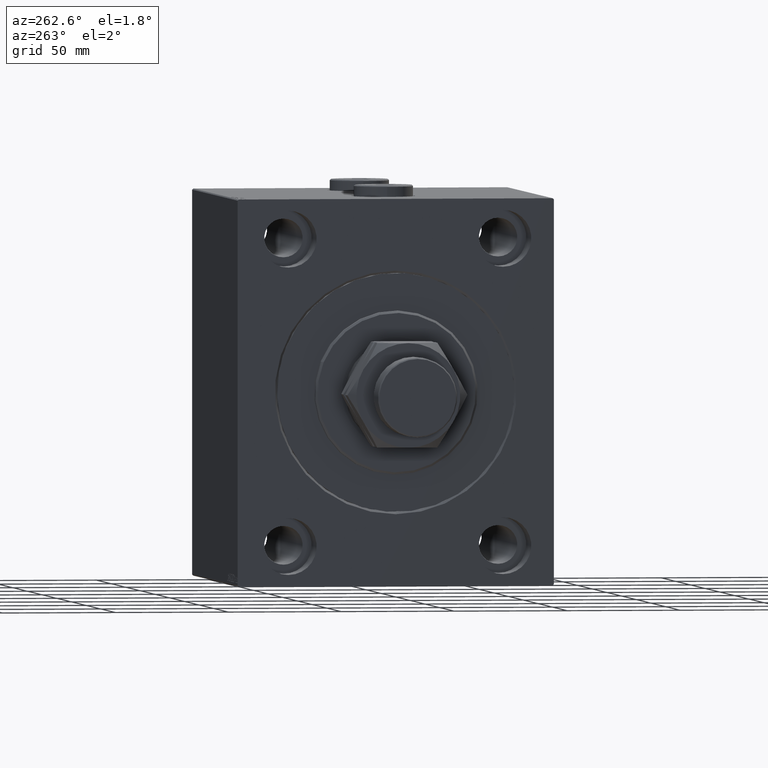
[diagram: clean part render]
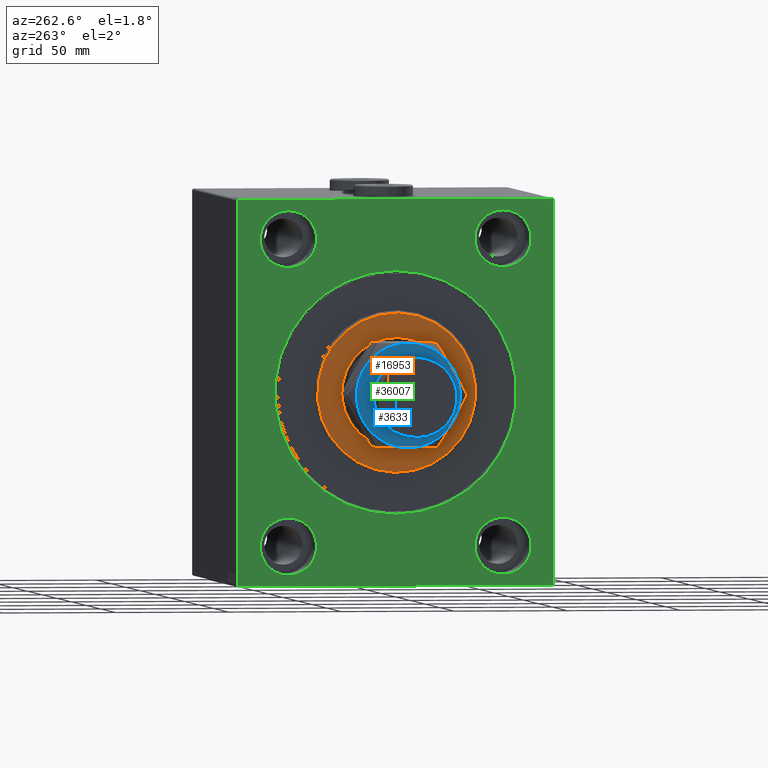
[diagram: same view with three faces highlighted in distinct colors, each labeled with its STEP entity id]
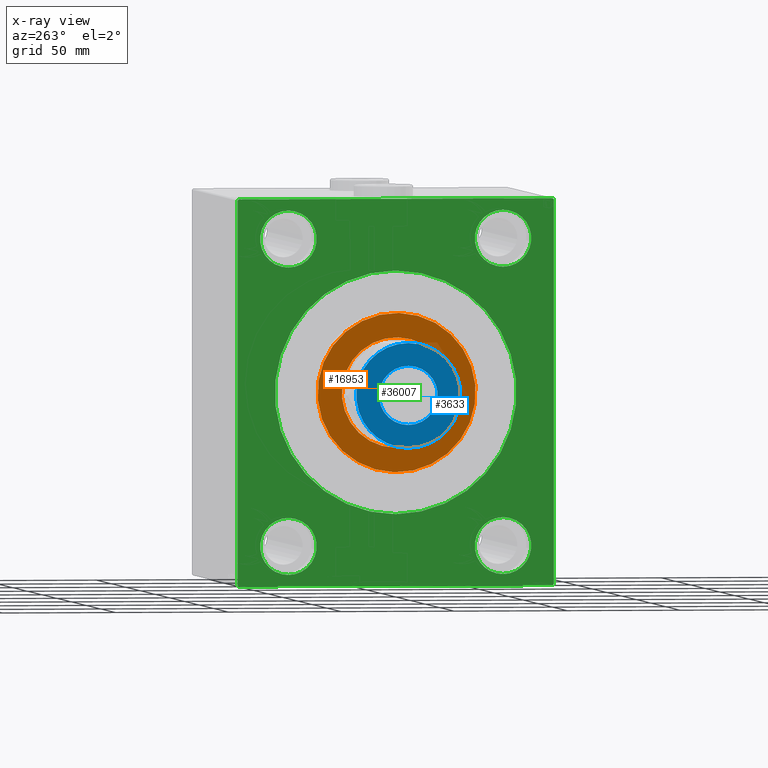
[diagram: x-ray of the same camera — body ghosted, the three highlighted faces saturated]
A machine part, auxiliary view with three faces highlighted in distinct colors.
The next image is the same camera in x-ray (body ghosted, the three faces saturated) — at least one of them is partly hidden behind the body in this view.
Their STEP definitions:

[orange] entity #16953 — the highlighted planar face has unit normal (-1, 0, 0).
#1431 = ORIENTED_EDGE ( 'NONE', *, *, #46038, .T. ) ;
#4732 = CARTESIAN_POINT ( 'NONE',  ( 3.000000000000000000, 0.000000000000000000, 24.25000000000000000 ) ) ;
#4760 = EDGE_LOOP ( 'NONE', ( #1431, #38504 ) ) ;
#6179 = DIRECTION ( 'NONE',  ( 0.000000000000000000, 0.000000000000000000, -1.000000000000000000 ) ) ;
#6636 = DIRECTION ( 'NONE',  ( 1.000000000000000000, -0.000000000000000000, 0.000000000000000000 ) ) ;
#6875 = CARTESIAN_POINT ( 'NONE',  ( 3.000000000000000000, 0.000000000000000000, 0.000000000000000000 ) ) ;
#6969 = DIRECTION ( 'NONE',  ( -1.000000000000000000, 0.000000000000000000, -0.000000000000000000 ) ) ;
#7095 = VERTEX_POINT ( 'NONE', #39741 ) ;
#7248 = CIRCLE ( 'NONE', #12568, 24.25000000000000000 ) ;
#7251 = CARTESIAN_POINT ( 'NONE',  ( 3.000000000000000000, 0.000000000000000000, 35.00000000000002842 ) ) ;
#9478 = DIRECTION ( 'NONE',  ( 1.000000000000000000, -0.000000000000000000, 0.000000000000000000 ) ) ;
#9873 = EDGE_CURVE ( 'NONE', #23143, #15786, #38648, .T. ) ;
#10547 = CARTESIAN_POINT ( 'NONE',  ( 3.000000000000000000, 0.000000000000000000, 0.000000000000000000 ) ) ;
#11006 = EDGE_LOOP ( 'NONE', ( #25014, #34041 ) ) ;
#12568 = AXIS2_PLACEMENT_3D ( 'NONE', #17240, #31300, #46278 ) ;
#15735 = PLANE ( 'NONE',  #25267 ) ;
#15786 = VERTEX_POINT ( 'NONE', #47106 ) ;
#16953 = ADVANCED_FACE ( 'NONE', ( #44784, #37416 ), #15735, .T. ) ;
#17240 = CARTESIAN_POINT ( 'NONE',  ( 3.000000000000000000, 0.000000000000000000, 0.000000000000000000 ) ) ;
#20025 = DIRECTION ( 'NONE',  ( 0.000000000000000000, 0.000000000000000000, -1.000000000000000000 ) ) ;
#21501 = DIRECTION ( 'NONE',  ( 0.000000000000000000, 0.000000000000000000, -1.000000000000000000 ) ) ;
#22651 = DIRECTION ( 'NONE',  ( 1.000000000000000000, -0.000000000000000000, 0.000000000000000000 ) ) ;
#23143 = VERTEX_POINT ( 'NONE', #4732 ) ;
#24004 = DIRECTION ( 'NONE',  ( 0.000000000000000000, 0.000000000000000000, -1.000000000000000000 ) ) ;
#24775 = EDGE_CURVE ( 'NONE', #15786, #23143, #7248, .T. ) ;
#25014 = ORIENTED_EDGE ( 'NONE', *, *, #9873, .T. ) ;
#25267 = AXIS2_PLACEMENT_3D ( 'NONE', #37653, #22651, #20025 ) ;
#30985 = AXIS2_PLACEMENT_3D ( 'NONE', #6875, #6636, #6179 ) ;
#31085 = CIRCLE ( 'NONE', #46250, 35.00000000000002842 ) ;
#31300 = DIRECTION ( 'NONE',  ( -1.000000000000000000, 0.000000000000000000, -0.000000000000000000 ) ) ;
#34041 = ORIENTED_EDGE ( 'NONE', *, *, #24775, .T. ) ;
#34887 = EDGE_CURVE ( 'NONE', #7095, #43801, #38604, .T. ) ;
#37416 = FACE_BOUND ( 'NONE', #11006, .T. ) ;
#37653 = CARTESIAN_POINT ( 'NONE',  ( 3.000000000000000000, 0.000000000000000000, 0.000000000000000000 ) ) ;
#38504 = ORIENTED_EDGE ( 'NONE', *, *, #34887, .T. ) ;
#38604 = CIRCLE ( 'NONE', #30985, 35.00000000000002842 ) ;
#38648 = CIRCLE ( 'NONE', #40951, 24.25000000000000000 ) ;
#39741 = CARTESIAN_POINT ( 'NONE',  ( 3.000000000000000000, 4.347496136973104859E-15, -35.00000000000002842 ) ) ;
#40951 = AXIS2_PLACEMENT_3D ( 'NONE', #10547, #6969, #21501 ) ;
#42092 = CARTESIAN_POINT ( 'NONE',  ( 3.000000000000000000, 0.000000000000000000, 0.000000000000000000 ) ) ;
#43801 = VERTEX_POINT ( 'NONE', #7251 ) ;
#44784 = FACE_OUTER_BOUND ( 'NONE', #4760, .T. ) ;
#46038 = EDGE_CURVE ( 'NONE', #43801, #7095, #31085, .T. ) ;
#46250 = AXIS2_PLACEMENT_3D ( 'NONE', #42092, #9478, #24004 ) ;
#46278 = DIRECTION ( 'NONE',  ( 0.000000000000000000, 0.000000000000000000, -1.000000000000000000 ) ) ;
#47106 = CARTESIAN_POINT ( 'NONE',  ( 3.000000000000000000, 2.969768487932331287E-15, -24.25000000000000000 ) ) ;

[blue] entity #3633 — the highlighted planar face has unit normal (-1, 0, 0).
#50 = DIRECTION ( 'NONE',  ( 1.000000000000000000, 0.000000000000000000, 0.000000000000000000 ) ) ;
#315 = CIRCLE ( 'NONE', #8726, 22.99999999999999645 ) ;
#460 = DIRECTION ( 'NONE',  ( 1.000000000000000000, 0.000000000000000000, 0.000000000000000000 ) ) ;
#1065 = DIRECTION ( 'NONE',  ( 0.000000000000000000, 0.000000000000000000, 1.000000000000000000 ) ) ;
#1235 = CARTESIAN_POINT ( 'NONE',  ( -13.00000000000000000, 1.592040838891559095E-15, 27.99999999999999645 ) ) ;
#1275 = FACE_OUTER_BOUND ( 'NONE', #6140, .T. ) ;
#1302 = ORIENTED_EDGE ( 'NONE', *, *, #9615, .T. ) ;
#1416 = DIRECTION ( 'NONE',  ( 1.000000000000000000, 0.000000000000000000, 0.000000000000000000 ) ) ;
#2680 = VERTEX_POINT ( 'NONE', #16825 ) ;
#3331 = DIRECTION ( 'NONE',  ( 1.000000000000000000, 0.000000000000000000, 0.000000000000000000 ) ) ;
#3435 = CARTESIAN_POINT ( 'NONE',  ( 22.99999999999999645, 0.000000000000000000, 28.00000000000000000 ) ) ;
#3633 = ADVANCED_FACE ( 'NONE', ( #44845, #1275 ), #27223, .T. ) ;
#5354 = CARTESIAN_POINT ( 'NONE',  ( 0.000000000000000000, 0.000000000000000000, 28.00000000000000000 ) ) ;
#6140 = EDGE_LOOP ( 'NONE', ( #11150, #25889, #13426, #1302, #40829, #32025 ) ) ;
#7082 = CARTESIAN_POINT ( 'NONE',  ( 0.000000000000000000, 0.000000000000000000, 28.00000000000000000 ) ) ;
#7105 = VERTEX_POINT ( 'NONE', #36885 ) ;
#7696 = VERTEX_POINT ( 'NONE', #3435 ) ;
#8726 = AXIS2_PLACEMENT_3D ( 'NONE', #12933, #11998, #26525 ) ;
#9584 = CARTESIAN_POINT ( 'NONE',  ( 0.000000000000000000, 0.000000000000000000, 28.00000000000000000 ) ) ;
#9615 = EDGE_CURVE ( 'NONE', #31732, #20103, #16626, .T. ) ;
#10328 = CIRCLE ( 'NONE', #19509, 22.99999999999999645 ) ;
#10947 = DIRECTION ( 'NONE',  ( 0.000000000000000000, 0.000000000000000000, 1.000000000000000000 ) ) ;
#11150 = ORIENTED_EDGE ( 'NONE', *, *, #22459, .T. ) ;
#11998 = DIRECTION ( 'NONE',  ( 0.000000000000000000, 0.000000000000000000, 1.000000000000000000 ) ) ;
#12933 = CARTESIAN_POINT ( 'NONE',  ( 0.000000000000000000, 0.000000000000000000, 28.00000000000000000 ) ) ;
#13426 = ORIENTED_EDGE ( 'NONE', *, *, #31495, .T. ) ;
#14108 = AXIS2_PLACEMENT_3D ( 'NONE', #7082, #39467, #31844 ) ;
#14987 = DIRECTION ( 'NONE',  ( 0.000000000000000000, 0.000000000000000000, 1.000000000000000000 ) ) ;
#15457 = CARTESIAN_POINT ( 'NONE',  ( 0.000000000000000000, 0.000000000000000000, 28.00000000000000000 ) ) ;
#16626 = CIRCLE ( 'NONE', #31070, 22.99999999999999645 ) ;
#16825 = CARTESIAN_POINT ( 'NONE',  ( 11.50000000000000533, -19.91858428704207995, 28.00000000000000000 ) ) ;
#18108 = CARTESIAN_POINT ( 'NONE',  ( 0.000000000000000000, 0.000000000000000000, 28.00000000000000000 ) ) ;
#18344 = DIRECTION ( 'NONE',  ( 1.000000000000000000, 0.000000000000000000, 0.000000000000000000 ) ) ;
#18676 = EDGE_CURVE ( 'NONE', #7696, #7105, #41252, .T. ) ;
#18680 = AXIS2_PLACEMENT_3D ( 'NONE', #35971, #43574, #18344 ) ;
#18710 = CIRCLE ( 'NONE', #38503, 22.99999999999999645 ) ;
#18726 = AXIS2_PLACEMENT_3D ( 'NONE', #9584, #42195, #34367 ) ;
#19509 = AXIS2_PLACEMENT_3D ( 'NONE', #32901, #32673, #50 ) ;
#20103 = VERTEX_POINT ( 'NONE', #41837 ) ;
#20418 = ORIENTED_EDGE ( 'NONE', *, *, #29671, .T. ) ;
#22459 = EDGE_CURVE ( 'NONE', #2680, #7696, #315, .T. ) ;
#22623 = AXIS2_PLACEMENT_3D ( 'NONE', #15457, #37137, #1416 ) ;
#23730 = CARTESIAN_POINT ( 'NONE',  ( -11.49999999999999822, 19.91858428704208706, 28.00000000000000000 ) ) ;
#25889 = ORIENTED_EDGE ( 'NONE', *, *, #18676, .T. ) ;
#26374 = EDGE_CURVE ( 'NONE', #27380, #2680, #45327, .T. ) ;
#26525 = DIRECTION ( 'NONE',  ( 1.000000000000000000, 0.000000000000000000, 0.000000000000000000 ) ) ;
#26622 = CARTESIAN_POINT ( 'NONE',  ( -11.50000000000000533, -19.91858428704208706, 28.00000000000000000 ) ) ;
#26778 = ORIENTED_EDGE ( 'NONE', *, *, #43580, .T. ) ;
#26820 = AXIS2_PLACEMENT_3D ( 'NONE', #18108, #10947, #3331 ) ;
#27223 = PLANE ( 'NONE',  #18726 ) ;
#27380 = VERTEX_POINT ( 'NONE', #26622 ) ;
#29671 = EDGE_CURVE ( 'NONE', #44139, #44742, #32351, .T. ) ;
#30742 = EDGE_LOOP ( 'NONE', ( #26778, #20418 ) ) ;
#31070 = AXIS2_PLACEMENT_3D ( 'NONE', #5354, #1065, #40826 ) ;
#31495 = EDGE_CURVE ( 'NONE', #7105, #31732, #18710, .T. ) ;
#31732 = VERTEX_POINT ( 'NONE', #23730 ) ;
#31844 = DIRECTION ( 'NONE',  ( 1.000000000000000000, 0.000000000000000000, 0.000000000000000000 ) ) ;
#31896 = EDGE_CURVE ( 'NONE', #20103, #27380, #10328, .T. ) ;
#32025 = ORIENTED_EDGE ( 'NONE', *, *, #26374, .T. ) ;
#32351 = CIRCLE ( 'NONE', #14108, 13.00000000000000000 ) ;
#32673 = DIRECTION ( 'NONE',  ( 0.000000000000000000, 0.000000000000000000, 1.000000000000000000 ) ) ;
#32901 = CARTESIAN_POINT ( 'NONE',  ( 0.000000000000000000, 0.000000000000000000, 28.00000000000000000 ) ) ;
#34367 = DIRECTION ( 'NONE',  ( 1.000000000000000000, 0.000000000000000000, -0.000000000000000000 ) ) ;
#35971 = CARTESIAN_POINT ( 'NONE',  ( 0.000000000000000000, 0.000000000000000000, 28.00000000000000000 ) ) ;
#36885 = CARTESIAN_POINT ( 'NONE',  ( 11.49999999999999822, 19.91858428704208706, 28.00000000000000000 ) ) ;
#37137 = DIRECTION ( 'NONE',  ( -0.000000000000000000, -0.000000000000000000, -1.000000000000000000 ) ) ;
#38503 = AXIS2_PLACEMENT_3D ( 'NONE', #39991, #14987, #460 ) ;
#39467 = DIRECTION ( 'NONE',  ( -0.000000000000000000, -0.000000000000000000, -1.000000000000000000 ) ) ;
#39991 = CARTESIAN_POINT ( 'NONE',  ( 0.000000000000000000, 0.000000000000000000, 28.00000000000000000 ) ) ;
#40826 = DIRECTION ( 'NONE',  ( 1.000000000000000000, 0.000000000000000000, 0.000000000000000000 ) ) ;
#40829 = ORIENTED_EDGE ( 'NONE', *, *, #31896, .T. ) ;
#41252 = CIRCLE ( 'NONE', #26820, 22.99999999999999645 ) ;
#41837 = CARTESIAN_POINT ( 'NONE',  ( -22.99999999999999645, 0.000000000000000000, 28.00000000000000000 ) ) ;
#42195 = DIRECTION ( 'NONE',  ( 0.000000000000000000, 0.000000000000000000, 1.000000000000000000 ) ) ;
#43574 = DIRECTION ( 'NONE',  ( 0.000000000000000000, 0.000000000000000000, 1.000000000000000000 ) ) ;
#43580 = EDGE_CURVE ( 'NONE', #44742, #44139, #44670, .T. ) ;
#44139 = VERTEX_POINT ( 'NONE', #1235 ) ;
#44670 = CIRCLE ( 'NONE', #22623, 13.00000000000000000 ) ;
#44742 = VERTEX_POINT ( 'NONE', #46443 ) ;
#44845 = FACE_BOUND ( 'NONE', #30742, .T. ) ;
#45327 = CIRCLE ( 'NONE', #18680, 22.99999999999999645 ) ;
#46443 = CARTESIAN_POINT ( 'NONE',  ( 13.00000000000000000, 0.000000000000000000, 27.99999999999999645 ) ) ;

[green] entity #36007 — the highlighted planar face has unit normal (1, 0, 0).
#120 = LINE ( 'NONE', #10365, #35266 ) ;
#1317 = CIRCLE ( 'NONE', #46157, 12.49999999999999645 ) ;
#1548 = ORIENTED_EDGE ( 'NONE', *, *, #6059, .F. ) ;
#1590 = VERTEX_POINT ( 'NONE', #43099 ) ;
#1637 = LINE ( 'NONE', #45200, #30239 ) ;
#2029 = VECTOR ( 'NONE', #39179, 1000.000000000000114 ) ;
#2257 = VERTEX_POINT ( 'NONE', #40954 ) ;
#2273 = CARTESIAN_POINT ( 'NONE',  ( 0.000000000000000000, 0.000000000000000000, 53.50000000000000000 ) ) ;
#2373 = DIRECTION ( 'NONE',  ( -1.000000000000000000, 0.000000000000000000, 0.000000000000000000 ) ) ;
#2482 = ORIENTED_EDGE ( 'NONE', *, *, #20294, .T. ) ;
#2761 = ORIENTED_EDGE ( 'NONE', *, *, #20841, .F. ) ;
#2840 = AXIS2_PLACEMENT_3D ( 'NONE', #14629, #21065, #24630 ) ;
#3057 = VERTEX_POINT ( 'NONE', #19896 ) ;
#3327 = VERTEX_POINT ( 'NONE', #28124 ) ;
#3566 = VERTEX_POINT ( 'NONE', #44925 ) ;
#4008 = EDGE_CURVE ( 'NONE', #3327, #4045, #33477, .T. ) ;
#4045 = VERTEX_POINT ( 'NONE', #8250 ) ;
#4530 = DIRECTION ( 'NONE',  ( 0.000000000000000000, 0.000000000000000000, -1.000000000000000000 ) ) ;
#5024 = DIRECTION ( 'NONE',  ( 0.000000000000000000, 0.000000000000000000, 1.000000000000000000 ) ) ;
#5155 = DIRECTION ( 'NONE',  ( 1.000000000000000000, 0.000000000000000000, 0.000000000000000000 ) ) ;
#5714 = DIRECTION ( 'NONE',  ( 0.000000000000000000, 0.000000000000000000, 1.000000000000000000 ) ) ;
#5944 = LINE ( 'NONE', #27839, #32848 ) ;
#6059 = EDGE_CURVE ( 'NONE', #30303, #4045, #13535, .T. ) ;
#6168 = DIRECTION ( 'NONE',  ( 0.000000000000000000, 0.000000000000000000, 1.000000000000000000 ) ) ;
#6329 = CIRCLE ( 'NONE', #32947, 12.49999999999999645 ) ;
#6804 = CARTESIAN_POINT ( 'NONE',  ( 0.000000000000000000, -47.49999999999999289, -55.00000000000000711 ) ) ;
#7636 = DIRECTION ( 'NONE',  ( 1.000000000000000000, 0.000000000000000000, 0.000000000000000000 ) ) ;
#7722 = EDGE_CURVE ( 'NONE', #11717, #45214, #28702, .T. ) ;
#8250 = CARTESIAN_POINT ( 'NONE',  ( 0.000000000000000000, 70.00000000000001421, 84.50000000000001421 ) ) ;
#8445 = ORIENTED_EDGE ( 'NONE', *, *, #19501, .F. ) ;
#8484 = FACE_BOUND ( 'NONE', #45181, .T. ) ;
#8568 = CARTESIAN_POINT ( 'NONE',  ( 0.000000000000000000, 70.00000000000002842, -84.50000000000007105 ) ) ;
#9084 = CARTESIAN_POINT ( 'NONE',  ( 0.000000000000000000, -69.49999999999997158, 84.99999999999998579 ) ) ;
#10241 = CARTESIAN_POINT ( 'NONE',  ( 0.000000000000000000, 47.50000000000000711, 55.00000000000000000 ) ) ;
#10365 = CARTESIAN_POINT ( 'NONE',  ( 0.000000000000000000, -69.99999999999998579, 84.49999999999998579 ) ) ;
#10371 = LINE ( 'NONE', #46091, #2029 ) ;
#10477 = AXIS2_PLACEMENT_3D ( 'NONE', #30631, #5155, #41814 ) ;
#10486 = DIRECTION ( 'NONE',  ( 0.000000000000000000, 0.000000000000000000, 1.000000000000000000 ) ) ;
#10685 = CARTESIAN_POINT ( 'NONE',  ( 0.000000000000000000, 70.00000000000002842, -84.50000000000007105 ) ) ;
#11155 = DIRECTION ( 'NONE',  ( 0.000000000000000000, 0.000000000000000000, 1.000000000000000000 ) ) ;
#11161 = CIRCLE ( 'NONE', #27884, 12.49999999999999645 ) ;
#11650 = ORIENTED_EDGE ( 'NONE', *, *, #4008, .T. ) ;
#11717 = VERTEX_POINT ( 'NONE', #22056 ) ;
#12213 = VERTEX_POINT ( 'NONE', #10241 ) ;
#12290 = EDGE_CURVE ( 'NONE', #45214, #11717, #27533, .T. ) ;
#12292 = ORIENTED_EDGE ( 'NONE', *, *, #27452, .F. ) ;
#12441 = EDGE_CURVE ( 'NONE', #2257, #34583, #5944, .T. ) ;
#12585 = DIRECTION ( 'NONE',  ( 0.000000000000000000, 1.000000000000000000, 9.912705577010325549E-17 ) ) ;
#12643 = CARTESIAN_POINT ( 'NONE',  ( 0.000000000000000000, 47.50000000000000711, 67.50000000000000000 ) ) ;
#12779 = ORIENTED_EDGE ( 'NONE', *, *, #32175, .F. ) ;
#13181 = AXIS2_PLACEMENT_3D ( 'NONE', #31276, #27937, #45804 ) ;
#13535 = LINE ( 'NONE', #43274, #18006 ) ;
#13720 = CARTESIAN_POINT ( 'NONE',  ( 0.000000000000000000, 70.00000000000001421, 85.00000000000000000 ) ) ;
#14166 = EDGE_CURVE ( 'NONE', #30303, #18394, #39962, .T. ) ;
#14529 = CARTESIAN_POINT ( 'NONE',  ( 0.000000000000000000, 47.50000000000000711, -67.50000000000000000 ) ) ;
#14629 = CARTESIAN_POINT ( 'NONE',  ( 0.000000000000000000, 0.000000000000000000, 0.000000000000000000 ) ) ;
#14881 = DIRECTION ( 'NONE',  ( -0.000000000000000000, 0.7071067811865672237, 0.7071067811865279218 ) ) ;
#14910 = DIRECTION ( 'NONE',  ( -0.000000000000000000, 0.7071067811865376918, -0.7071067811865573427 ) ) ;
#15002 = AXIS2_PLACEMENT_3D ( 'NONE', #12643, #27170, #5024 ) ;
#15341 = ORIENTED_EDGE ( 'NONE', *, *, #7722, .T. ) ;
#15414 = EDGE_LOOP ( 'NONE', ( #42009, #21981 ) ) ;
#15428 = CARTESIAN_POINT ( 'NONE',  ( 0.000000000000000000, 47.50000000000000711, -67.50000000000000000 ) ) ;
#16105 = FACE_BOUND ( 'NONE', #40922, .T. ) ;
#16454 = VECTOR ( 'NONE', #14910, 1000.000000000000114 ) ;
#16543 = ORIENTED_EDGE ( 'NONE', *, *, #12441, .F. ) ;
#17708 = DIRECTION ( 'NONE',  ( -1.000000000000000000, 0.000000000000000000, 0.000000000000000000 ) ) ;
#18006 = VECTOR ( 'NONE', #20683, 1000.000000000000000 ) ;
#18394 = VERTEX_POINT ( 'NONE', #22199 ) ;
#19043 = CARTESIAN_POINT ( 'NONE',  ( 0.000000000000000000, -47.49999999999997868, 55.00000000000000000 ) ) ;
#19501 = EDGE_CURVE ( 'NONE', #1590, #39011, #37527, .T. ) ;
#19649 = EDGE_LOOP ( 'NONE', ( #31401, #15341 ) ) ;
#19896 = CARTESIAN_POINT ( 'NONE',  ( 0.000000000000000000, 47.50000000000000711, -80.00000000000000000 ) ) ;
#20294 = EDGE_CURVE ( 'NONE', #2257, #23673, #120, .T. ) ;
#20683 = DIRECTION ( 'NONE',  ( 0.000000000000000000, -8.163404592832031500E-17, 1.000000000000000000 ) ) ;
#20841 = EDGE_CURVE ( 'NONE', #3057, #3566, #6329, .T. ) ;
#20862 = ORIENTED_EDGE ( 'NONE', *, *, #39391, .F. ) ;
#21065 = DIRECTION ( 'NONE',  ( 1.000000000000000000, 0.000000000000000000, 0.000000000000000000 ) ) ;
#21981 = ORIENTED_EDGE ( 'NONE', *, *, #35549, .F. ) ;
#22056 = CARTESIAN_POINT ( 'NONE',  ( 0.000000000000000000, 6.551860375438339893E-15, -53.50000000000000000 ) ) ;
#22164 = CARTESIAN_POINT ( 'NONE',  ( 0.000000000000000000, 0.000000000000000000, 0.000000000000000000 ) ) ;
#22199 = CARTESIAN_POINT ( 'NONE',  ( 0.000000000000000000, 69.50000000000007105, -85.00000000000001421 ) ) ;
#22906 = VECTOR ( 'NONE', #46629, 1000.000000000000114 ) ;
#23017 = FACE_OUTER_BOUND ( 'NONE', #46525, .T. ) ;
#23248 = FACE_BOUND ( 'NONE', #15414, .T. ) ;
#23352 = DIRECTION ( 'NONE',  ( -1.000000000000000000, 0.000000000000000000, 0.000000000000000000 ) ) ;
#23673 = VERTEX_POINT ( 'NONE', #9084 ) ;
#23779 = ORIENTED_EDGE ( 'NONE', *, *, #34380, .F. ) ;
#24357 = ORIENTED_EDGE ( 'NONE', *, *, #14166, .T. ) ;
#24630 = DIRECTION ( 'NONE',  ( 0.000000000000000000, 0.000000000000000000, -1.000000000000000000 ) ) ;
#24851 = CARTESIAN_POINT ( 'NONE',  ( 0.000000000000000000, -47.49999999999999289, -67.50000000000000000 ) ) ;
#25045 = VERTEX_POINT ( 'NONE', #46222 ) ;
#25708 = VERTEX_POINT ( 'NONE', #45665 ) ;
#26186 = ORIENTED_EDGE ( 'NONE', *, *, #27255, .F. ) ;
#27170 = DIRECTION ( 'NONE',  ( -1.000000000000000000, 0.000000000000000000, 0.000000000000000000 ) ) ;
#27247 = ORIENTED_EDGE ( 'NONE', *, *, #33374, .T. ) ;
#27255 = EDGE_CURVE ( 'NONE', #46833, #25045, #30132, .T. ) ;
#27297 = FACE_BOUND ( 'NONE', #19649, .T. ) ;
#27452 = EDGE_CURVE ( 'NONE', #3327, #23673, #41847, .T. ) ;
#27533 = CIRCLE ( 'NONE', #41970, 53.50000000000000000 ) ;
#27839 = CARTESIAN_POINT ( 'NONE',  ( 0.000000000000000000, -69.99999999999998579, 84.99999999999998579 ) ) ;
#27884 = AXIS2_PLACEMENT_3D ( 'NONE', #14529, #28817, #10486 ) ;
#27937 = DIRECTION ( 'NONE',  ( -1.000000000000000000, 0.000000000000000000, 0.000000000000000000 ) ) ;
#28124 = CARTESIAN_POINT ( 'NONE',  ( 0.000000000000000000, 69.50000000000004263, 85.00000000000000000 ) ) ;
#28702 = CIRCLE ( 'NONE', #2840, 53.50000000000000000 ) ;
#28817 = DIRECTION ( 'NONE',  ( -1.000000000000000000, 0.000000000000000000, 0.000000000000000000 ) ) ;
#28827 = CIRCLE ( 'NONE', #34931, 12.50000000000001066 ) ;
#30132 = CIRCLE ( 'NONE', #36219, 12.50000000000001066 ) ;
#30239 = VECTOR ( 'NONE', #12585, 1000.000000000000000 ) ;
#30303 = VERTEX_POINT ( 'NONE', #8568 ) ;
#30631 = CARTESIAN_POINT ( 'NONE',  ( 0.000000000000000000, 0.000000000000000000, 0.000000000000000000 ) ) ;
#30714 = DIRECTION ( 'NONE',  ( 0.000000000000000000, 0.000000000000000000, -1.000000000000000000 ) ) ;
#31276 = CARTESIAN_POINT ( 'NONE',  ( 0.000000000000000000, -47.49999999999999289, -67.50000000000000000 ) ) ;
#31401 = ORIENTED_EDGE ( 'NONE', *, *, #12290, .T. ) ;
#31574 = DIRECTION ( 'NONE',  ( 0.000000000000000000, -1.000000000000000000, -9.912705577010325549E-17 ) ) ;
#32175 = EDGE_CURVE ( 'NONE', #3566, #3057, #11161, .T. ) ;
#32213 = DIRECTION ( 'NONE',  ( 0.000000000000000000, 0.000000000000000000, 1.000000000000000000 ) ) ;
#32828 = ORIENTED_EDGE ( 'NONE', *, *, #35769, .F. ) ;
#32848 = VECTOR ( 'NONE', #30714, 1000.000000000000000 ) ;
#32947 = AXIS2_PLACEMENT_3D ( 'NONE', #15428, #36632, #11155 ) ;
#33374 = EDGE_CURVE ( 'NONE', #25708, #34583, #10371, .T. ) ;
#33477 = LINE ( 'NONE', #40859, #16454 ) ;
#34380 = EDGE_CURVE ( 'NONE', #39011, #1590, #1317, .T. ) ;
#34583 = VERTEX_POINT ( 'NONE', #35753 ) ;
#34931 = AXIS2_PLACEMENT_3D ( 'NONE', #45241, #23352, #5714 ) ;
#35225 = VERTEX_POINT ( 'NONE', #40794 ) ;
#35266 = VECTOR ( 'NONE', #14881, 1000.000000000000000 ) ;
#35549 = EDGE_CURVE ( 'NONE', #12213, #35225, #40867, .T. ) ;
#35753 = CARTESIAN_POINT ( 'NONE',  ( 0.000000000000000000, -69.99999999999998579, -84.50000000000004263 ) ) ;
#35769 = EDGE_CURVE ( 'NONE', #25708, #18394, #1637, .T. ) ;
#36007 = ADVANCED_FACE ( 'NONE', ( #27297, #8484, #37307, #23248, #16105, #23017 ), #44671, .F. ) ;
#36219 = AXIS2_PLACEMENT_3D ( 'NONE', #45705, #2373, #6168 ) ;
#36632 = DIRECTION ( 'NONE',  ( -1.000000000000000000, 0.000000000000000000, 0.000000000000000000 ) ) ;
#37174 = AXIS2_PLACEMENT_3D ( 'NONE', #39372, #42466, #46497 ) ;
#37307 = FACE_BOUND ( 'NONE', #42977, .T. ) ;
#37527 = CIRCLE ( 'NONE', #13181, 12.49999999999999645 ) ;
#38505 = VECTOR ( 'NONE', #31574, 1000.000000000000000 ) ;
#39011 = VERTEX_POINT ( 'NONE', #6804 ) ;
#39179 = DIRECTION ( 'NONE',  ( -0.000000000000000000, -0.7071067811865376918, 0.7071067811865573427 ) ) ;
#39372 = CARTESIAN_POINT ( 'NONE',  ( 0.000000000000000000, -47.49999999999997868, 67.50000000000000000 ) ) ;
#39391 = EDGE_CURVE ( 'NONE', #25045, #46833, #39431, .T. ) ;
#39431 = CIRCLE ( 'NONE', #37174, 12.50000000000001066 ) ;
#39962 = LINE ( 'NONE', #10685, #22906 ) ;
#39979 = EDGE_CURVE ( 'NONE', #35225, #12213, #28827, .T. ) ;
#40794 = CARTESIAN_POINT ( 'NONE',  ( 0.000000000000000000, 47.50000000000000711, 80.00000000000001421 ) ) ;
#40859 = CARTESIAN_POINT ( 'NONE',  ( 0.000000000000000000, 69.50000000000004263, 85.00000000000000000 ) ) ;
#40867 = CIRCLE ( 'NONE', #15002, 12.50000000000001066 ) ;
#40922 = EDGE_LOOP ( 'NONE', ( #23779, #8445 ) ) ;
#40954 = CARTESIAN_POINT ( 'NONE',  ( 0.000000000000000000, -69.99999999999998579, 84.49999999999998579 ) ) ;
#41814 = DIRECTION ( 'NONE',  ( 0.000000000000000000, 0.000000000000000000, -1.000000000000000000 ) ) ;
#41847 = LINE ( 'NONE', #13720, #38505 ) ;
#41970 = AXIS2_PLACEMENT_3D ( 'NONE', #22164, #7636, #4530 ) ;
#42009 = ORIENTED_EDGE ( 'NONE', *, *, #39979, .F. ) ;
#42466 = DIRECTION ( 'NONE',  ( -1.000000000000000000, 0.000000000000000000, 0.000000000000000000 ) ) ;
#42977 = EDGE_LOOP ( 'NONE', ( #20862, #26186 ) ) ;
#43099 = CARTESIAN_POINT ( 'NONE',  ( 0.000000000000000000, -47.49999999999999289, -80.00000000000000000 ) ) ;
#43274 = CARTESIAN_POINT ( 'NONE',  ( 0.000000000000000000, 70.00000000000002842, -85.00000000000001421 ) ) ;
#44671 = PLANE ( 'NONE',  #10477 ) ;
#44925 = CARTESIAN_POINT ( 'NONE',  ( 0.000000000000000000, 47.50000000000000711, -55.00000000000000711 ) ) ;
#45181 = EDGE_LOOP ( 'NONE', ( #12779, #2761 ) ) ;
#45200 = CARTESIAN_POINT ( 'NONE',  ( 0.000000000000000000, -69.99999999999998579, -85.00000000000002842 ) ) ;
#45214 = VERTEX_POINT ( 'NONE', #2273 ) ;
#45241 = CARTESIAN_POINT ( 'NONE',  ( 0.000000000000000000, 47.50000000000000711, 67.50000000000000000 ) ) ;
#45665 = CARTESIAN_POINT ( 'NONE',  ( 0.000000000000000000, -69.50000000000001421, -85.00000000000002842 ) ) ;
#45705 = CARTESIAN_POINT ( 'NONE',  ( 0.000000000000000000, -47.49999999999997868, 67.50000000000000000 ) ) ;
#45804 = DIRECTION ( 'NONE',  ( 0.000000000000000000, 0.000000000000000000, 1.000000000000000000 ) ) ;
#46091 = CARTESIAN_POINT ( 'NONE',  ( 0.000000000000000000, -69.50000000000001421, -85.00000000000002842 ) ) ;
#46157 = AXIS2_PLACEMENT_3D ( 'NONE', #24851, #17708, #32213 ) ;
#46222 = CARTESIAN_POINT ( 'NONE',  ( 0.000000000000000000, -47.49999999999997868, 80.00000000000001421 ) ) ;
#46497 = DIRECTION ( 'NONE',  ( 0.000000000000000000, 0.000000000000000000, 1.000000000000000000 ) ) ;
#46525 = EDGE_LOOP ( 'NONE', ( #16543, #2482, #12292, #11650, #1548, #24357, #32828, #27247 ) ) ;
#46629 = DIRECTION ( 'NONE',  ( 0.000000000000000000, -0.7071067811865573427, -0.7071067811865376918 ) ) ;
#46833 = VERTEX_POINT ( 'NONE', #19043 ) ;